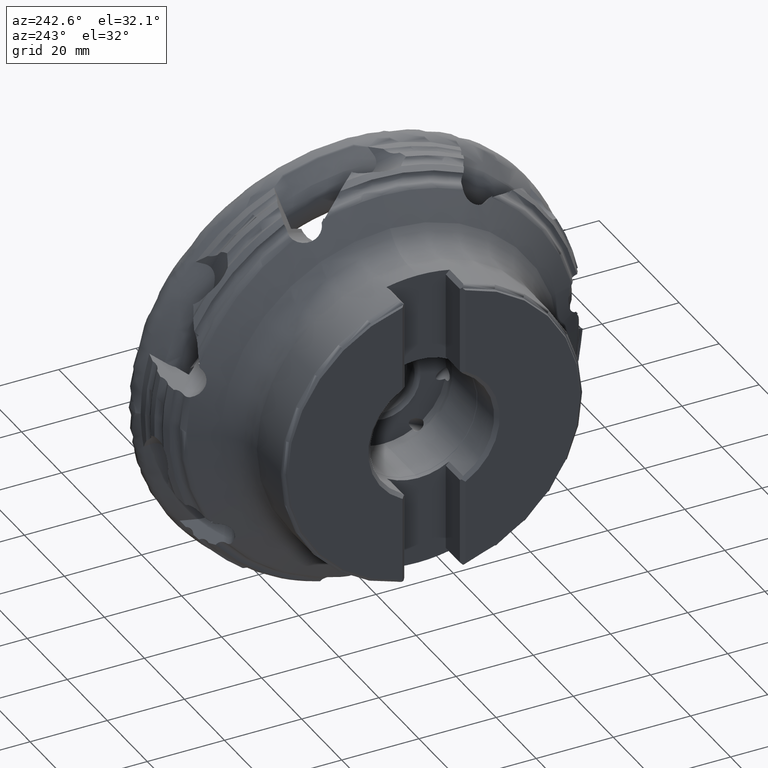
[diagram: clean part render]
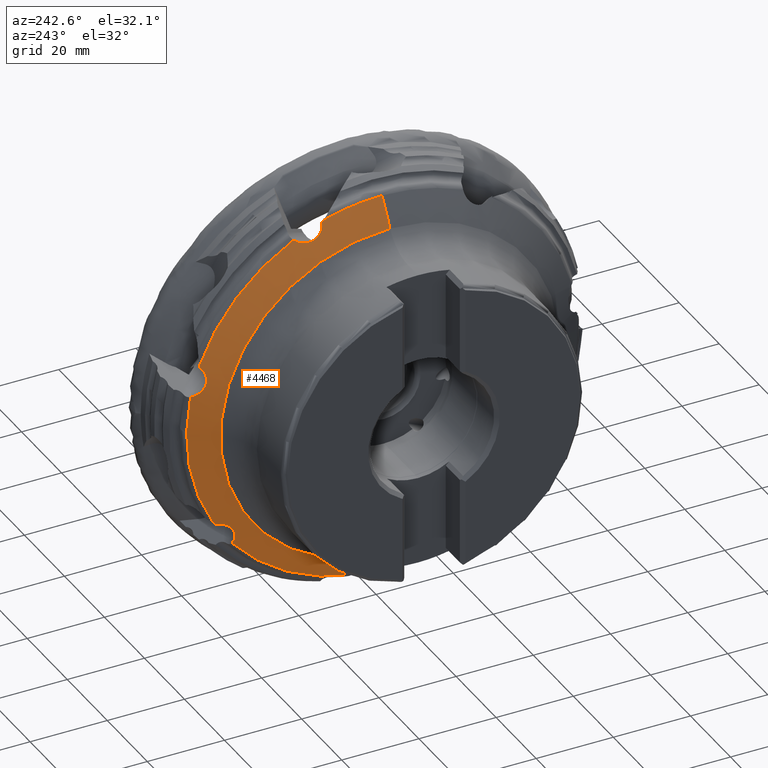
[diagram: same view with one face highlighted and labeled with its STEP entity id]
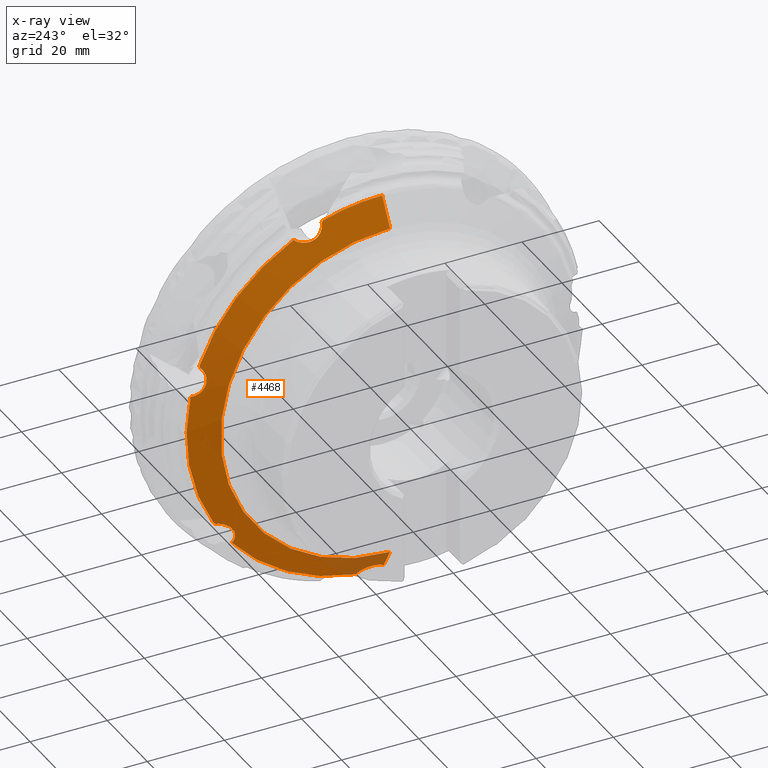
[diagram: x-ray of the same camera — body ghosted, the highlighted face saturated]
A machine part, auxiliary view. The second image highlights one B-rep face of the part: STEP entity #4468.
The next image is the same camera in x-ray: the body ghosted, the highlighted face saturated — about 5% of this face is hidden behind the body in this view.
In plain terms, the highlighted conical surface has half-angle 59.485 deg.
Its self-contained STEP definition (entity closure, byte-faithful):
#910 = EDGE_LOOP ( 'NONE', ( #2004, #2003, #2002, #2005, #2006, #2007, #2008, #2009, #2010, #2011, #2012, #2013, #2014, #2015, #2016 ) ) ;
#2002 = ORIENTED_EDGE ( 'NONE', *, *, #5739, .F. ) ;
#2003 = ORIENTED_EDGE ( 'NONE', *, *, #5728, .T. ) ;
#2004 = ORIENTED_EDGE ( 'NONE', *, *, #5719, .T. ) ;
#2005 = ORIENTED_EDGE ( 'NONE', *, *, #5681, .F. ) ;
#2006 = ORIENTED_EDGE ( 'NONE', *, *, #5760, .F. ) ;
#2007 = ORIENTED_EDGE ( 'NONE', *, *, #10790, .F. ) ;
#2008 = ORIENTED_EDGE ( 'NONE', *, *, #9370, .F. ) ;
#2009 = ORIENTED_EDGE ( 'NONE', *, *, #9371, .F. ) ;
#2010 = ORIENTED_EDGE ( 'NONE', *, *, #10827, .F. ) ;
#2011 = ORIENTED_EDGE ( 'NONE', *, *, #10818, .F. ) ;
#2012 = ORIENTED_EDGE ( 'NONE', *, *, #10812, .F. ) ;
#2013 = ORIENTED_EDGE ( 'NONE', *, *, #10809, .F. ) ;
#2014 = ORIENTED_EDGE ( 'NONE', *, *, #2551, .F. ) ;
#2015 = ORIENTED_EDGE ( 'NONE', *, *, #2541, .F. ) ;
#2016 = ORIENTED_EDGE ( 'NONE', *, *, #2534, .F. ) ;
#2534 = EDGE_CURVE ( 'NONE', #5832, #6077, #4609, .T. ) ;
#2541 = EDGE_CURVE ( 'NONE', #6077, #5790, #11867, .T. ) ;
#2551 = EDGE_CURVE ( 'NONE', #5790, #5821, #11845, .T. ) ;
#2898 = CARTESIAN_POINT ( 'NONE',  ( -23.15331236313904000, 43.19065518671993000, -25.99563294038673400 ) ) ;
#2900 = CARTESIAN_POINT ( 'NONE',  ( -23.11225284718787900, 43.33306101636450300, -25.89411962827806200 ) ) ;
#2908 = CARTESIAN_POINT ( 'NONE',  ( -23.06301287555043800, 43.48336059346445400, -25.80489929402884600 ) ) ;
#2910 = CARTESIAN_POINT ( 'NONE',  ( -23.00644572797120400, 43.63837094150407800, -25.73096249302634700 ) ) ;
#3013 = CARTESIAN_POINT ( 'NONE',  ( -23.00644572797142100, 0.0000000000000000000, 0.0000000000000000000 ) ) ;
#3014 = DIRECTION ( 'NONE',  ( 1.000000000000000000, -0.0000000000000000000, -0.0000000000000000000 ) ) ;
#3016 = DIRECTION ( 'NONE',  ( 0.0000000000000000000, 0.0000000000000000000, -1.000000000000000000 ) ) ;
#4468 = ADVANCED_FACE ( 'NONE', ( #5370 ), #5377, .T. ) ;
#4609 = LINE ( 'NONE', #6518, #4612 ) ;
#4612 = VECTOR ( 'NONE', #6543, 1000.000000000000000 ) ;
#5370 = FACE_OUTER_BOUND ( 'NONE', #910, .T. ) ;
#5377 = CONICAL_SURFACE ( 'NONE', #7737, 50.65954845086756800, 1.038200955560655300 ) ;
#5580 = CIRCLE ( 'NONE', #7865, 43.92229059280778400 ) ;
#5585 = LINE ( 'NONE', #13546, #5586 ) ;
#5586 = VECTOR ( 'NONE', #13552, 1000.000000000000000 ) ;
#5588 = CIRCLE ( 'NONE', #7869, 50.65954845086756800 ) ;
#5681 = EDGE_CURVE ( 'NONE', #5929, #6001, #9509, .T. ) ;
#5719 = EDGE_CURVE ( 'NONE', #5832, #5971, #5580, .T. ) ;
#5728 = EDGE_CURVE ( 'NONE', #5971, #6014, #5585, .T. ) ;
#5739 = EDGE_CURVE ( 'NONE', #6001, #6014, #5588, .T. ) ;
#5760 = EDGE_CURVE ( 'NONE', #5819, #5929, #9557, .T. ) ;
#5776 = VERTEX_POINT ( 'NONE', #13985 ) ;
#5790 = VERTEX_POINT ( 'NONE', #13995 ) ;
#5791 = VERTEX_POINT ( 'NONE', #13996 ) ;
#5793 = VERTEX_POINT ( 'NONE', #13990 ) ;
#5801 = VERTEX_POINT ( 'NONE', #14001 ) ;
#5814 = VERTEX_POINT ( 'NONE', #14011 ) ;
#5819 = VERTEX_POINT ( 'NONE', #14016 ) ;
#5821 = VERTEX_POINT ( 'NONE', #14018 ) ;
#5832 = VERTEX_POINT ( 'NONE', #14027 ) ;
#5929 = VERTEX_POINT ( 'NONE', #14100 ) ;
#5971 = VERTEX_POINT ( 'NONE', #14132 ) ;
#5996 = VERTEX_POINT ( 'NONE', #14152 ) ;
#6001 = VERTEX_POINT ( 'NONE', #14156 ) ;
#6014 = VERTEX_POINT ( 'NONE', #14168 ) ;
#6077 = VERTEX_POINT ( 'NONE', #14211 ) ;
#6518 = CARTESIAN_POINT ( 'NONE',  ( -23.00644572797142100, 0.0000000000000000000, -50.65954845086756800 ) ) ;
#6543 = DIRECTION ( 'NONE',  ( 0.5077709407192220200, 0.0000000000000000000, -0.8614921193842206600 ) ) ;
#6584 = CARTESIAN_POINT ( 'NONE',  ( -23.91579827859559500, 0.2345287180222965500, -49.11672669152264300 ) ) ;
#6586 = CARTESIAN_POINT ( 'NONE',  ( -24.01562850171623600, 0.4900059177689793900, -48.94569584435627300 ) ) ;
#6591 = CARTESIAN_POINT ( 'NONE',  ( -23.80184685691397900, -7.012021165783545200E-013, -49.31005845570809500 ) ) ;
#6592 = CARTESIAN_POINT ( 'NONE',  ( -24.14319746374471300, 0.9051177481480812100, -48.72271098526469800 ) ) ;
#6593 = CARTESIAN_POINT ( 'NONE',  ( -24.18209474033927400, 1.049511659571657600, -48.65383087214313900 ) ) ;
#6594 = CARTESIAN_POINT ( 'NONE',  ( -24.25038610669460200, 1.342613026076586500, -48.53071710834493000 ) ) ;
#6595 = CARTESIAN_POINT ( 'NONE',  ( -24.28002847184146500, 1.491983681760128000, -48.47605710706576300 ) ) ;
#6596 = CARTESIAN_POINT ( 'NONE',  ( -24.33029303093832500, 1.796325888229708000, -48.38039581480719400 ) ) ;
#6597 = CARTESIAN_POINT ( 'NONE',  ( -24.35091615807553500, 1.951296896031322400, -48.33939323026569900 ) ) ;
#6598 = CARTESIAN_POINT ( 'NONE',  ( -24.38280123834328000, 2.267019946727360000, -48.27145955613980300 ) ) ;
#6599 = CARTESIAN_POINT ( 'NONE',  ( -24.39408908133377100, 2.428869338359982400, -48.24442267298963600 ) ) ;
#6600 = CARTESIAN_POINT ( 'NONE',  ( -24.41257597410144300, 2.914367065687563800, -48.18693094458025400 ) ) ;
#6601 = CARTESIAN_POINT ( 'NONE',  ( -24.40489750662721100, 3.237126719329446600, -48.17934079963364300 ) ) ;
#6602 = CARTESIAN_POINT ( 'NONE',  ( -24.34854066574514400, 3.880788469464909500, -48.22769417727646900 ) ) ;
#6603 = CARTESIAN_POINT ( 'NONE',  ( -24.29882009766783200, 4.203515723317313000, -48.28514864155186400 ) ) ;
#6604 = CARTESIAN_POINT ( 'NONE',  ( -24.19575062538851600, 4.657971926951800500, -48.41843829445352300 ) ) ;
#6605 = CARTESIAN_POINT ( 'NONE',  ( -24.15656987506379100, 4.805665831023832300, -48.47077435375821600 ) ) ;
#6606 = CARTESIAN_POINT ( 'NONE',  ( -24.06834626321354900, 5.093204685963633500, -48.59190785252048500 ) ) ;
#6607 = CARTESIAN_POINT ( 'NONE',  ( -24.01887371037440700, 5.234077212518593000, -48.66132341918331900 ) ) ;
#6608 = CARTESIAN_POINT ( 'NONE',  ( -23.85807362287150100, 5.635721059188286500, -48.89155245933479700 ) ) ;
#6609 = CARTESIAN_POINT ( 'NONE',  ( -23.73564538891470500, 5.874322194939749900, -49.07236278344926500 ) ) ;
#6610 = CARTESIAN_POINT ( 'NONE',  ( -23.52976925321430800, 6.188008824277352100, -49.38558409957148100 ) ) ;
#6611 = CARTESIAN_POINT ( 'NONE',  ( -23.45709395361502900, 6.285298050227752700, -49.49755884288379800 ) ) ;
#6612 = CARTESIAN_POINT ( 'NONE',  ( -23.30837203181170700, 6.459241504667230200, -49.72961452737147400 ) ) ;
#6613 = CARTESIAN_POINT ( 'NONE',  ( -23.23187279193644300, 6.536683590076959800, -49.85037295780602300 ) ) ;
#6614 = CARTESIAN_POINT ( 'NONE',  ( -23.15331236313904000, 6.604728805040195100, -49.97582600459275400 ) ) ;
#6673 = CARTESIAN_POINT ( 'NONE',  ( -23.11225284718784300, 6.772883690845111100, -50.02387085064323500 ) ) ;
#6711 = CARTESIAN_POINT ( 'NONE',  ( -23.15331236313904000, 6.604728805040195100, -49.97582600459275400 ) ) ;
#6714 = CARTESIAN_POINT ( 'NONE',  ( -23.06301287555036700, 6.936349210583083300, -50.08575182329885700 ) ) ;
#6715 = CARTESIAN_POINT ( 'NONE',  ( -23.00644572797107300, 7.090802700505200600, -50.16084495209751300 ) ) ;
#7737 = AXIS2_PLACEMENT_3D ( 'NONE', #11802, #11804, #11801 ) ;
#7865 = AXIS2_PLACEMENT_3D ( 'NONE', #13477, #13478, #13479 ) ;
#7869 = AXIS2_PLACEMENT_3D ( 'NONE', #13652, #13653, #13654 ) ;
#7902 = AXIS2_PLACEMENT_3D ( 'NONE', #14816, #14817, #14818 ) ;
#7911 = AXIS2_PLACEMENT_3D ( 'NONE', #14915, #14916, #14917 ) ;
#7914 = AXIS2_PLACEMENT_3D ( 'NONE', #3013, #3014, #3016 ) ;
#9370 = EDGE_CURVE ( 'NONE', #5814, #5996, #9596, .T. ) ;
#9371 = EDGE_CURVE ( 'NONE', #5791, #5814, #9597, .T. ) ;
#9509 = B_SPLINE_CURVE_WITH_KNOTS ( 'NONE', 3,
 ( #13255, #13254, #13261, #13262 ),
 .UNSPECIFIED., .F., .F.,
 ( 4, 4 ),
 ( 0.003357147830032945600, 0.003890863376940129300 ),
 .UNSPECIFIED. ) ;
#9557 = B_SPLINE_CURVE_WITH_KNOTS ( 'NONE', 3,
 ( #13906, #13907, #13910, #13911, #13912, #13913, #13914, #13915, #13916, #13917, #13918, #13919, #13920, #13921, #13922, #13923, #13924, #13925, #13926, #13927, #13928, #13929, #13930, #13931, #13932, #13933, #13934, #13935 ),
 .UNSPECIFIED., .F., .F.,
 ( 4, 2, 2, 2, 2, 2, 2, 2, 2, 2, 2, 2, 2, 4 ),
 ( 4.173523124996588400E-007, 0.001206341339445214900, 0.001809303333011579000, 0.002412265326577943300, 0.003618189313710670700, 0.004221151307277032200, 0.004824113300843395900, 0.006030037287976123200, 0.006632999281542486900, 0.007235961275108849700, 0.007838923268675211700, 0.008441885262241575300, 0.009044847255807939000, 0.009647809249374302700 ),
 .UNSPECIFIED. ) ;
#9596 = B_SPLINE_CURVE_WITH_KNOTS ( 'NONE', 3,
 ( #14678, #14679, #14684, #14685 ),
 .UNSPECIFIED., .F., .F.,
 ( 4, 4 ),
 ( 0.001948609594489144600, 0.002483362753211841700 ),
 .UNSPECIFIED. ) ;
#9597 = B_SPLINE_CURVE_WITH_KNOTS ( 'NONE', 3,
 ( #14664, #14683, #14686, #14687, #14688, #14689, #14690, #14691, #14692, #14693, #14694, #14695, #14696, #14697, #14698, #14699, #14700, #14701, #14702, #14703, #14704, #14705, #14706, #14707, #14708, #14709, #14710, #14711 ),
 .UNSPECIFIED., .F., .F.,
 ( 4, 2, 2, 2, 2, 2, 2, 2, 2, 2, 2, 2, 2, 4 ),
 ( 4.173523120197552300E-007, 0.001206341339444803700, 0.001809303333011197600, 0.002412265326577591600, 0.003618189313710368800, 0.004221151307276763300, 0.004824113300843156500, 0.006030037287975946300, 0.006632999281542341200, 0.007235961275108734400, 0.007838923268675133600, 0.008441885262241533700, 0.009044847255807932100, 0.009647809249374330500 ),
 .UNSPECIFIED. ) ;
#9619 = B_SPLINE_CURVE_WITH_KNOTS ( 'NONE', 3,
 ( #14919, #14918, #14938, #14939, #14940, #14941, #14942, #14943, #14944, #14945, #14946, #14947, #14948, #14949, #14950, #14951, #14952, #14953, #14954, #14955, #14956, #14957, #14958, #14959, #14960, #14961, #14962, #14963 ),
 .UNSPECIFIED., .F., .F.,
 ( 4, 2, 2, 2, 2, 2, 2, 2, 2, 2, 2, 2, 2, 4 ),
 ( 4.173523122488886500E-007, 0.001206341339445004500, 0.001809303333011384500, 0.002412265326577764200, 0.003618189313710534500, 0.004221151307276915100, 0.004824113300843294400, 0.006030037287976052100, 0.006632999281542427100, 0.007235961275108801100, 0.007838923268675177000, 0.008441885262241552800, 0.009044847255807925100, 0.009647809249374301000 ),
 .UNSPECIFIED. ) ;
#9623 = B_SPLINE_CURVE_WITH_KNOTS ( 'NONE', 3,
 ( #2898, #2900, #2908, #2910 ),
 .UNSPECIFIED., .F., .F.,
 ( 4, 4 ),
 ( 0.003357147830032488900, 0.003890863376939664000 ),
 .UNSPECIFIED. ) ;
#10790 = EDGE_CURVE ( 'NONE', #5996, #5819, #15113, .T. ) ;
#10809 = EDGE_CURVE ( 'NONE', #5821, #5801, #15124, .T. ) ;
#10812 = EDGE_CURVE ( 'NONE', #5801, #5793, #9619, .T. ) ;
#10818 = EDGE_CURVE ( 'NONE', #5793, #5776, #9623, .T. ) ;
#10827 = EDGE_CURVE ( 'NONE', #5776, #5791, #15131, .T. ) ;
#11801 = DIRECTION ( 'NONE',  ( 0.0000000000000000000, 0.0000000000000000000, -1.000000000000000000 ) ) ;
#11802 = CARTESIAN_POINT ( 'NONE',  ( -23.00644572797142100, 0.0000000000000000000, 0.0000000000000000000 ) ) ;
#11804 = DIRECTION ( 'NONE',  ( 1.000000000000000000, -0.0000000000000000000, -0.0000000000000000000 ) ) ;
#11845 = B_SPLINE_CURVE_WITH_KNOTS ( 'NONE', 3,
 ( #6711, #6673, #6714, #6715 ),
 .UNSPECIFIED., .F., .F.,
 ( 4, 4 ),
 ( 0.003357147830032488900, 0.003890863376940071200 ),
 .UNSPECIFIED. ) ;
#11867 = B_SPLINE_CURVE_WITH_KNOTS ( 'NONE', 3,
 ( #6591, #6584, #6586, #6592, #6593, #6594, #6595, #6596, #6597, #6598, #6599, #6600, #6601, #6602, #6603, #6604, #6605, #6606, #6607, #6608, #6609, #6610, #6611, #6612, #6613, #6614 ),
 .UNSPECIFIED., .F., .F.,
 ( 4, 2, 2, 2, 2, 2, 2, 2, 2, 2, 2, 2, 4 ),
 ( 0.001892098833053189000, 0.002861562635093323200, 0.003346294536113389500, 0.003831026437133454800, 0.004315758338153520200, 0.004800490239173586500, 0.005769954041213719000, 0.006739417843253850600, 0.007224149744273919400, 0.007708881645293989100, 0.008678345447334128600, 0.009163077348354208700, 0.009647809249374288800 ),
 .UNSPECIFIED. ) ;
#13254 = CARTESIAN_POINT ( 'NONE',  ( -23.11225284718787500, 15.60238677843590000, 48.00859438879285100 ) ) ;
#13255 = CARTESIAN_POINT ( 'NONE',  ( -23.15331236313904000, 15.73304321808201000, 47.89234780763436600 ) ) ;
#13261 = CARTESIAN_POINT ( 'NONE',  ( -23.06301287555043800, 15.48195858197263200, 48.13527224959168600 ) ) ;
#13262 = CARTESIAN_POINT ( 'NONE',  ( -23.00644572797120400, 15.37538248351918900, 48.26994367855972700 ) ) ;
#13477 = CARTESIAN_POINT ( 'NONE',  ( -26.97744404992966200, 0.0000000000000000000, 0.0000000000000000000 ) ) ;
#13478 = DIRECTION ( 'NONE',  ( 1.000000000000000000, -0.0000000000000000000, -0.0000000000000000000 ) ) ;
#13479 = DIRECTION ( 'NONE',  ( 0.0000000000000000000, 0.0000000000000000000, -1.000000000000000000 ) ) ;
#13546 = CARTESIAN_POINT ( 'NONE',  ( -23.00644572797142100, 6.204005385660522400E-015, 50.65954845086756800 ) ) ;
#13552 = DIRECTION ( 'NONE',  ( 0.5077709407192220200, 1.055023566494555300E-016, 0.8614921193842206600 ) ) ;
#13652 = CARTESIAN_POINT ( 'NONE',  ( -23.00644572797142100, 0.0000000000000000000, 0.0000000000000000000 ) ) ;
#13653 = DIRECTION ( 'NONE',  ( 1.000000000000000000, -0.0000000000000000000, -0.0000000000000000000 ) ) ;
#13654 = DIRECTION ( 'NONE',  ( 0.0000000000000000000, 0.0000000000000000000, -1.000000000000000000 ) ) ;
#13906 = CARTESIAN_POINT ( 'NONE',  ( -23.00644572797151000, 22.93895854238241900, 45.16850706229556100 ) ) ;
#13907 = CARTESIAN_POINT ( 'NONE',  ( -23.19907135757210200, 22.65743270004560700, 44.94493931695730300 ) ) ;
#13910 = CARTESIAN_POINT ( 'NONE',  ( -23.37691948993271800, 22.34504543195950900, 44.76448797548746900 ) ) ;
#13911 = CARTESIAN_POINT ( 'NONE',  ( -23.62164609776389300, 21.83245761918320900, 44.55429662418231400 ) ) ;
#13912 = CARTESIAN_POINT ( 'NONE',  ( -23.69994521507519300, 21.65285947704471800, 44.49422702787747100 ) ) ;
#13913 = CARTESIAN_POINT ( 'NONE',  ( -23.84473138656182600, 21.28765714725767900, 44.39783704450462000 ) ) ;
#13914 = CARTESIAN_POINT ( 'NONE',  ( -23.91160546935695700, 21.10145487480497900, 44.36108795146228800 ) ) ;
#13915 = CARTESIAN_POINT ( 'NONE',  ( -24.09560395111987300, 20.53213256246289500, 44.28446209030727200 ) ) ;
#13916 = CARTESIAN_POINT ( 'NONE',  ( -24.19706846814206000, 20.13275648876227600, 44.27884971338780700 ) ) ;
#13917 = CARTESIAN_POINT ( 'NONE',  ( -24.30563319205236900, 19.54223665488871800, 44.34021949668283500 ) ) ;
#13918 = CARTESIAN_POINT ( 'NONE',  ( -24.33489018652710500, 19.34608028892424200, 44.37204724264498200 ) ) ;
#13919 = CARTESIAN_POINT ( 'NONE',  ( -24.37908839469749700, 18.95514223718329200, 44.45894706592892500 ) ) ;
#13920 = CARTESIAN_POINT ( 'NONE',  ( -24.39406465199899200, 18.75878398089697900, 44.51460657831840000 ) ) ;
#13921 = CARTESIAN_POINT ( 'NONE',  ( -24.41521944419273300, 18.18495139080392800, 44.71471998071637400 ) ) ;
#13922 = CARTESIAN_POINT ( 'NONE',  ( -24.39864370889406300, 17.82408179213960200, 44.88995876256630900 ) ) ;
#13923 = CARTESIAN_POINT ( 'NONE',  ( -24.32494377477286900, 17.31775128534796000, 45.22033917712740700 ) ) ;
#13924 = CARTESIAN_POINT ( 'NONE',  ( -24.29212615974064300, 17.15622191948246900, 45.34135362669224600 ) ) ;
#13925 = CARTESIAN_POINT ( 'NONE',  ( -24.21194371145269400, 16.85713645877997300, 45.59846049806775200 ) ) ;
#13926 = CARTESIAN_POINT ( 'NONE',  ( -24.16439582733579200, 16.71814170054988200, 45.73544571776871200 ) ) ;
#13927 = CARTESIAN_POINT ( 'NONE',  ( -24.05405340186211700, 16.46213318884870700, 46.02708670773022700 ) ) ;
#13928 = CARTESIAN_POINT ( 'NONE',  ( -23.99053871867876000, 16.34428807474718300, 46.18331878669471300 ) ) ;
#13929 = CARTESIAN_POINT ( 'NONE',  ( -23.85207067943369100, 16.13989563111628900, 46.50388973903723400 ) ) ;
#13930 = CARTESIAN_POINT ( 'NONE',  ( -23.77697464385003200, 16.05246064519868200, 46.66882298992767600 ) ) ;
#13931 = CARTESIAN_POINT ( 'NONE',  ( -23.61532503137141200, 15.90721123493548800, 47.00815683954851200 ) ) ;
#13932 = CARTESIAN_POINT ( 'NONE',  ( -23.52794418422761400, 15.84908202995899100, 47.18413929251414600 ) ) ;
#13933 = CARTESIAN_POINT ( 'NONE',  ( -23.34557476239716000, 15.76636463803966500, 47.53793837331426900 ) ) ;
#13934 = CARTESIAN_POINT ( 'NONE',  ( -23.25103432586405500, 15.74159456868126000, 47.71502495763252900 ) ) ;
#13935 = CARTESIAN_POINT ( 'NONE',  ( -23.15331236313904000, 15.73304321808201000, 47.89234780763436600 ) ) ;
#13985 = CARTESIAN_POINT ( 'NONE',  ( -23.00644572797120400, 43.63837094150407800, -25.73096249302634700 ) ) ;
#13990 = CARTESIAN_POINT ( 'NONE',  ( -23.15331236313904000, 43.19065518671993000, -25.99563294038673400 ) ) ;
#13995 = CARTESIAN_POINT ( 'NONE',  ( -23.15331236313904000, 6.604728805040195100, -49.97582600459275400 ) ) ;
#13996 = CARTESIAN_POINT ( 'NONE',  ( -23.00644572797126100, 49.61636755381839900, 10.22770355506175100 ) ) ;
#14001 = CARTESIAN_POINT ( 'NONE',  ( -23.00644572797138600, 38.93163980777760700, -32.41476933626506700 ) ) ;
#14011 = CARTESIAN_POINT ( 'NONE',  ( -23.15331236313905100, 47.25313728399416400, 17.55980194220477100 ) ) ;
#14016 = CARTESIAN_POINT ( 'NONE',  ( -23.00644572797151000, 22.93895854238241900, 45.16850706229556100 ) ) ;
#14018 = CARTESIAN_POINT ( 'NONE',  ( -23.00644572797107300, 7.090802700505200600, -50.16084495209751300 ) ) ;
#14027 = CARTESIAN_POINT ( 'NONE',  ( -26.97744404992966200, 0.0000000000000000000, -43.92229059280778400 ) ) ;
#14100 = CARTESIAN_POINT ( 'NONE',  ( -23.15331236313904000, 15.73304321808201000, 47.89234780763436600 ) ) ;
#14132 = CARTESIAN_POINT ( 'NONE',  ( -26.97744404992966200, 5.791467322115395900E-015, 43.92229059280778400 ) ) ;
#14152 = CARTESIAN_POINT ( 'NONE',  ( -23.00644572797143500, 47.32535580300813600, 18.07485953927387700 ) ) ;
#14156 = CARTESIAN_POINT ( 'NONE',  ( -23.00644572797120400, 15.37538248351918900, 48.26994367855972700 ) ) ;
#14168 = CARTESIAN_POINT ( 'NONE',  ( -23.00644572797142100, 6.204005385660522400E-015, 50.65954845086756800 ) ) ;
#14211 = CARTESIAN_POINT ( 'NONE',  ( -23.80184685691397900, -7.012021165783545200E-013, -49.31005845570809500 ) ) ;
#14664 = CARTESIAN_POINT ( 'NONE',  ( -23.00644572797126100, 49.61636755381839900, 10.22770355506175100 ) ) ;
#14678 = CARTESIAN_POINT ( 'NONE',  ( -23.15331236313905100, 47.25313728399416400, 17.55980194220477100 ) ) ;
#14679 = CARTESIAN_POINT ( 'NONE',  ( -23.11240517107646400, 47.26252460813775300, 17.73378397053399200 ) ) ;
#14683 = CARTESIAN_POINT ( 'NONE',  ( -23.19907135757187400, 49.26604676039183800, 10.30841711248601400 ) ) ;
#14684 = CARTESIAN_POINT ( 'NONE',  ( -23.06306166222260500, 47.28648105169107700, 17.90742444670829800 ) ) ;
#14685 = CARTESIAN_POINT ( 'NONE',  ( -23.00644572797143500, 47.32535580300813600, 18.07485953927387700 ) ) ;
#14686 = CARTESIAN_POINT ( 'NONE',  ( -23.37691948993251900, 48.93019394469491300, 10.44014174225971400 ) ) ;
#14687 = CARTESIAN_POINT ( 'NONE',  ( -23.62164609776371900, 48.44626645507888400, 10.70984686783993700 ) ) ;
#14688 = CARTESIAN_POINT ( 'NONE',  ( -23.69994521507503300, 48.28732454349248800, 10.81280956885871300 ) ) ;
#14689 = CARTESIAN_POINT ( 'NONE',  ( -23.84473138656166900, 47.98426389165971500, 11.03823807612257100 ) ) ;
#14690 = CARTESIAN_POINT ( 'NONE',  ( -23.91160546935683200, 47.83943707580988300, 11.16090419009372600 ) ) ;
#14691 = CARTESIAN_POINT ( 'NONE',  ( -24.09560395111977400, 47.42456190947169900, 11.55824285456545100 ) ) ;
#14692 = CARTESIAN_POINT ( 'NONE',  ( -24.19706846814198200, 47.17116706744582200, 11.86698838255559200 ) ) ;
#14693 = CARTESIAN_POINT ( 'NONE',  ( -24.30563319205231900, 46.85096480188259000, 12.36693881372645800 ) ) ;
#14694 = CARTESIAN_POINT ( 'NONE',  ( -24.33489018652706200, 46.75354724194327400, 12.54014431114756800 ) ) ;
#14695 = CARTESIAN_POINT ( 'NONE',  ( -24.37908839469746200, 46.57774237118853500, 12.89997314129423400 ) ) ;
#14696 = CARTESIAN_POINT ( 'NONE',  ( -24.39406465199897400, 46.49883135996814300, 13.08819534625266300 ) ) ;
#14697 = CARTESIAN_POINT ( 'NONE',  ( -24.41521944419273300, 46.29750755012943800, 13.66160439646400200 ) ) ;
#14698 = CARTESIAN_POINT ( 'NONE',  ( -24.39864370889406700, 46.20951623216095800, 14.05300320313895800 ) ) ;
#14699 = CARTESIAN_POINT ( 'NONE',  ( -24.32494377477289800, 46.15212613410111700, 14.65485715309540600 ) ) ;
#14700 = CARTESIAN_POINT ( 'NONE',  ( -24.29212615974066800, 46.14602712828658300, 14.85659717185337100 ) ) ;
#14701 = CARTESIAN_POINT ( 'NONE',  ( -24.21194371145272200, 46.16056464005456700, 15.25073511326950500 ) ) ;
#14702 = CARTESIAN_POINT ( 'NONE',  ( -24.16439582733582000, 46.18100218318128500, 15.44481447864075800 ) ) ;
#14703 = CARTESIAN_POINT ( 'NONE',  ( -24.05405340186214900, 46.24939759447662600, 15.82680517591353600 ) ) ;
#14704 = CARTESIAN_POINT ( 'NONE',  ( -23.99053871867879600, 46.29806952554132200, 16.01634930413068500 ) ) ;
#14705 = CARTESIAN_POINT ( 'NONE',  ( -23.85207067943372300, 46.42126538426660400, 16.37602247089762000 ) ) ;
#14706 = CARTESIAN_POINT ( 'NONE',  ( -23.77697464385006000, 46.49570057027324300, 16.54721609547476600 ) ) ;
#14707 = CARTESIAN_POINT ( 'NONE',  ( -23.61532503137142700, 46.67044093094882100, 16.87234785189253800 ) ) ;
#14708 = CARTESIAN_POINT ( 'NONE',  ( -23.52794418422762100, 46.77178658654627700, 17.02751835912415100 ) ) ;
#14709 = CARTESIAN_POINT ( 'NONE',  ( -23.34557476239717400, 46.99682439608606200, 17.31277953906024400 ) ) ;
#14710 = CARTESIAN_POINT ( 'NONE',  ( -23.25103432586406500, 47.11983237719249500, 17.44255723847597400 ) ) ;
#14711 = CARTESIAN_POINT ( 'NONE',  ( -23.15331236313905100, 47.25313728399416400, 17.55980194220477100 ) ) ;
#14816 = CARTESIAN_POINT ( 'NONE',  ( -23.00644572797142100, 0.0000000000000000000, 0.0000000000000000000 ) ) ;
#14817 = DIRECTION ( 'NONE',  ( 1.000000000000000000, -0.0000000000000000000, -0.0000000000000000000 ) ) ;
#14818 = DIRECTION ( 'NONE',  ( 0.0000000000000000000, 0.0000000000000000000, -1.000000000000000000 ) ) ;
#14915 = CARTESIAN_POINT ( 'NONE',  ( -23.00644572797142100, 0.0000000000000000000, 0.0000000000000000000 ) ) ;
#14916 = DIRECTION ( 'NONE',  ( 1.000000000000000000, -0.0000000000000000000, -0.0000000000000000000 ) ) ;
#14917 = DIRECTION ( 'NONE',  ( 0.0000000000000000000, 0.0000000000000000000, -1.000000000000000000 ) ) ;
#14918 = CARTESIAN_POINT ( 'NONE',  ( -23.19907135757198400, 38.77632276595337400, -32.09055343107521500 ) ) ;
#14919 = CARTESIAN_POINT ( 'NONE',  ( -23.00644572797138600, 38.93163980777760700, -32.41476933626506700 ) ) ;
#14938 = CARTESIAN_POINT ( 'NONE',  ( -23.37691948993262200, 38.66990842301434100, -31.74584416297030700 ) ) ;
#14939 = CARTESIAN_POINT ( 'NONE',  ( -23.62164609776381100, 38.57904852656133000, -31.19933602104850600 ) ) ;
#14940 = CARTESIAN_POINT ( 'NONE',  ( -23.69994521507511800, 38.56044934677569800, -31.01087403662957300 ) ) ;
#14941 = CARTESIAN_POINT ( 'NONE',  ( -23.84473138656175500, 38.54774122503797400, -30.63337930260219400 ) ) ;
#14942 = CARTESIAN_POINT ( 'NONE',  ( -23.91160546935691000, 38.55334741205461300, -30.44366806737054200 ) ) ;
#14943 = CARTESIAN_POINT ( 'NONE',  ( -24.09560395111983400, 38.60532885388413900, -29.87156899585091500 ) ) ;
#14944 = CARTESIAN_POINT ( 'NONE',  ( -24.19706846814202400, 38.68872672789130700, -29.48095724278872600 ) ) ;
#14945 = CARTESIAN_POINT ( 'NONE',  ( -24.30563319205233300, 38.87996086754342400, -28.91889903554390900 ) ) ;
#14946 = CARTESIAN_POINT ( 'NONE',  ( -24.33489018652708300, 38.95463952321966900, -28.73474305897021400 ) ) ;
#14947 = CARTESIAN_POINT ( 'NONE',  ( -24.37908839469747900, 39.12635248689532800, -28.37294367023174900 ) ) ;
#14948 = CARTESIAN_POINT ( 'NONE',  ( -24.39406465199898500, 39.22431032168108800, -28.19389393207133700 ) ) ;
#14949 = CARTESIAN_POINT ( 'NONE',  ( -24.41521944419272900, 39.54709622716263300, -27.67897794426876600 ) ) ;
#14950 = CARTESIAN_POINT ( 'NONE',  ( -24.39864370889406000, 39.79824244701608600, -27.36615039727566800 ) ) ;
#14951 = CARTESIAN_POINT ( 'NONE',  ( -24.32494377477287600, 40.23300867207176200, -26.94603121182431900 ) ) ;
#14952 = CARTESIAN_POINT ( 'NONE',  ( -24.29212615974065800, 40.38693270208360500, -26.81547997274440200 ) ) ;
#14953 = CARTESIAN_POINT ( 'NONE',  ( -24.21194371145269700, 40.70414614344961300, -26.58110487012282200 ) ) ;
#14954 = CARTESIAN_POINT ( 'NONE',  ( -24.16439582733580600, 40.86862610110883100, -26.47607707970340500 ) ) ;
#14955 = CARTESIAN_POINT ( 'NONE',  ( -24.05405340186213800, 41.20992229568318500, -26.29138346135599100 ) ) ;
#14956 = CARTESIAN_POINT ( 'NONE',  ( -23.99053871867877100, 41.38846031509589800, -26.21125787842926900 ) ) ;
#14957 = CARTESIAN_POINT ( 'NONE',  ( -23.85207067943370500, 41.74647548181970800, -26.08332372780897000 ) ) ;
#14958 = CARTESIAN_POINT ( 'NONE',  ( -23.77697464385004300, 41.92672962648654800, -26.03478202056526000 ) ) ;
#14959 = CARTESIAN_POINT ( 'NONE',  ( -23.61532503137140500, 42.28987670245837900, -25.96868320141234300 ) ) ;
#14960 = CARTESIAN_POINT ( 'NONE',  ( -23.52794418422760700, 42.47438187289029100, -25.95117119676163900 ) ) ;
#14961 = CARTESIAN_POINT ( 'NONE',  ( -23.34557476239716300, 42.83771682337098200, -25.94925540444914700 ) ) ;
#14962 = CARTESIAN_POINT ( 'NONE',  ( -23.25103432586404800, 43.01587533626355500, -25.96451184457858500 ) ) ;
#14963 = CARTESIAN_POINT ( 'NONE',  ( -23.15331236313904000, 43.19065518671993000, -25.99563294038673400 ) ) ;
#15113 = CIRCLE ( 'NONE', #7902, 50.65954845086756800 ) ;
#15124 = CIRCLE ( 'NONE', #7911, 50.65954845086756800 ) ;
#15131 = CIRCLE ( 'NONE', #7914, 50.65954845086756800 ) ;